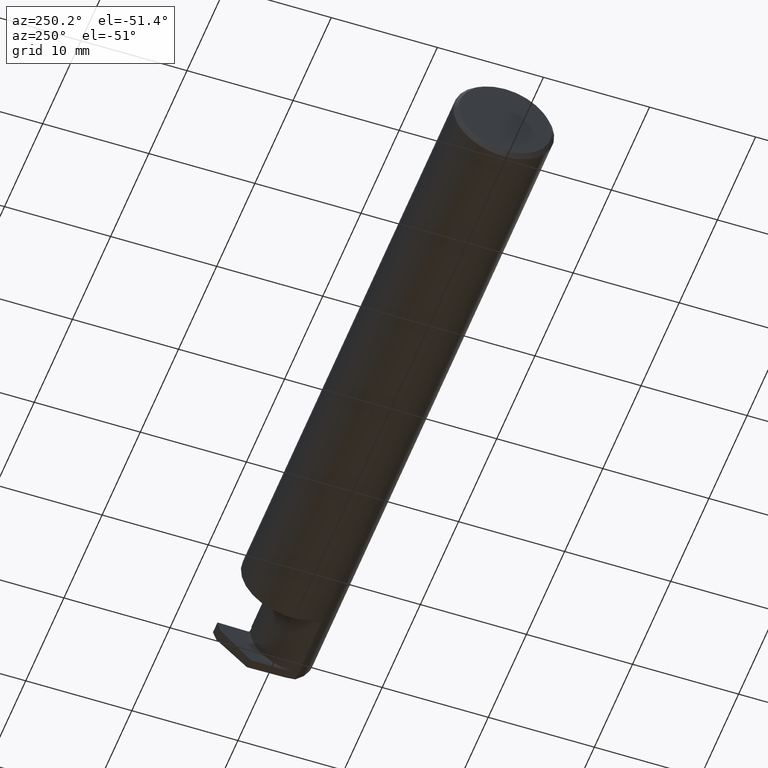
[diagram: clean part render]
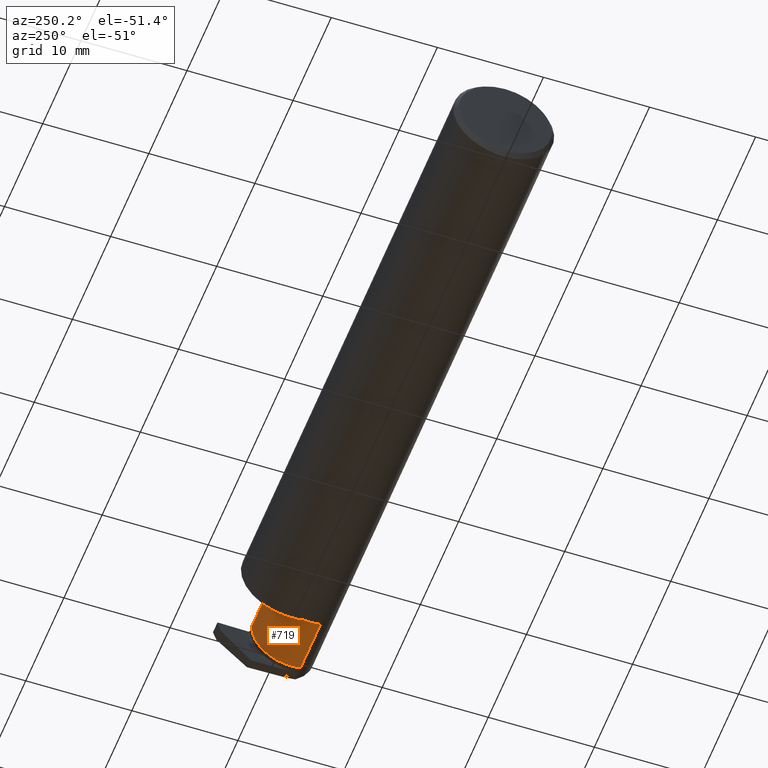
[diagram: same view with one face highlighted and labeled with its STEP entity id]
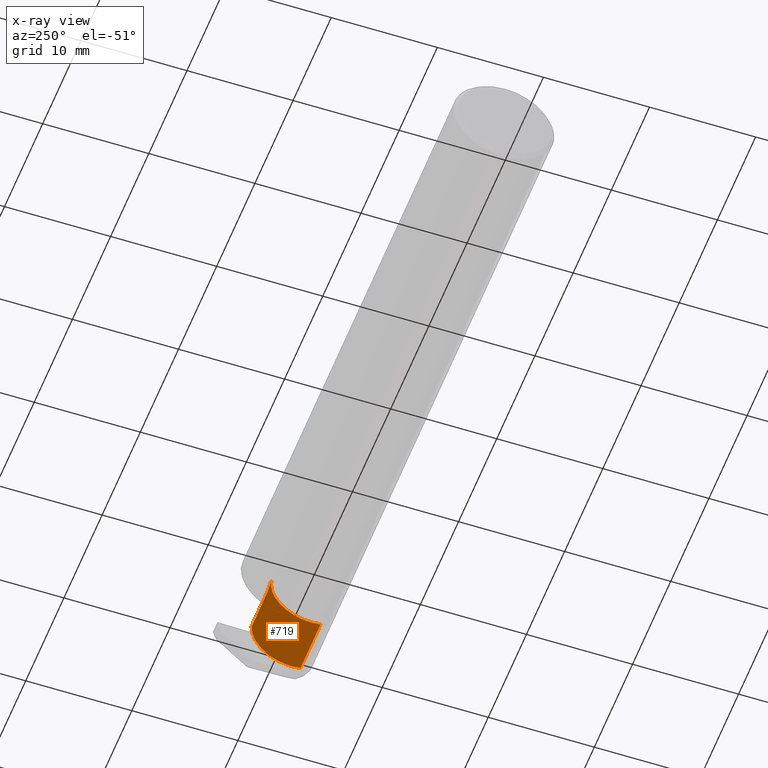
[diagram: x-ray of the same camera — body ghosted, the highlighted face saturated]
A machine part, auxiliary view. The second image highlights one B-rep face of the part: STEP entity #719.
The next image is the same camera in x-ray: the body ghosted, the highlighted face saturated — about 0% of this face is hidden behind the body in this view.
In plain terms, the highlighted cylindrical surface (partial cylindrical patch) has radius 3.81 mm, axis along (-1, -0, -0).
Its self-contained STEP definition (entity closure, byte-faithful):
#7 = EDGE_LOOP ( 'NONE', ( #674, #712, #755, #30, #108 ) ) ;
#14 = CARTESIAN_POINT ( 'NONE',  ( 2.260000000000000231, 0.06664999999999998703, 2.939152317953647352E-17 ) ) ;
#30 = ORIENTED_EDGE ( 'NONE', *, *, #790, .F. ) ;
#36 = CARTESIAN_POINT ( 'NONE',  ( 2.436046101885026793, -0.008364415749995551819, -0.1303958744996015773 ) ) ;
#108 = ORIENTED_EDGE ( 'NONE', *, *, #583, .T. ) ;
#109 = CARTESIAN_POINT ( 'NONE',  ( 2.433128246628466496, 0.05660152496226496244, -0.05513071817246590484 ) ) ;
#117 = CARTESIAN_POINT ( 'NONE',  ( 2.431434868253365078, 0.06665000001251139561, -0.01133157817362112803 ) ) ;
#154 = CARTESIAN_POINT ( 'NONE',  ( 2.436647136148048620, -0.1172600179964007061, -0.1461167706989303094 ) ) ;
#169 = VERTEX_POINT ( 'NONE', #181 ) ;
#181 = CARTESIAN_POINT ( 'NONE',  ( 2.431000000000000494, 0.06664999999999988989, 9.135099441613365556E-18 ) ) ;
#191 = AXIS2_PLACEMENT_3D ( 'NONE', #584, #746, #232 ) ;
#194 = LINE ( 'NONE', #680, #519 ) ;
#195 = CARTESIAN_POINT ( 'NONE',  ( 2.433931572752874750, 0.04684530644161014057, -0.07533264634971054141 ) ) ;
#230 = EDGE_CURVE ( 'NONE', #486, #356, #449, .T. ) ;
#232 = DIRECTION ( 'NONE',  ( 0.000000000000000000, 0.000000000000000000, 1.000000000000000000 ) ) ;
#249 = VERTEX_POINT ( 'NONE', #841 ) ;
#260 = DIRECTION ( 'NONE',  ( -1.000000000000000000, -0.000000000000000000, -0.000000000000000000 ) ) ;
#277 = VERTEX_POINT ( 'NONE', #914 ) ;
#279 = B_SPLINE_CURVE_WITH_KNOTS ( 'NONE', 3,
 ( #334, #117, #466, #767, #109, #195, #394, #681, #343, #413, #36, #472, #822, #836, #618, #756, #628, #760 ),
 .UNSPECIFIED., .F., .F.,
 ( 4, 2, 2, 2, 2, 2, 2, 2, 4 ),
 ( 4.190616790185394939E-12, 0.0008601682978369350413, 0.001720336591483253262, 0.002580504885129571158, 0.003440673178775889487, 0.004300841472422207816, 0.005161009766068525711, 0.006021178059714844474, 0.006881346353361164105 ),
 .UNSPECIFIED. ) ;
#314 = CARTESIAN_POINT ( 'NONE',  ( 2.239881184731320030, 0.06563637295415016004, 0.02011881526868028111 ) ) ;
#320 = DIRECTION ( 'NONE',  ( -1.000000000000000000, -0.000000000000000000, -0.000000000000000000 ) ) ;
#330 = CYLINDRICAL_SURFACE ( 'NONE', #873, 0.1499999999999999667 ) ;
#334 = CARTESIAN_POINT ( 'NONE',  ( 2.431000000000000494, 0.06664999999999988989, 9.135099441613365556E-18 ) ) ;
#340 = CIRCLE ( 'NONE', #191, 0.1499999999999999667 ) ;
#343 = CARTESIAN_POINT ( 'NONE',  ( 2.435238345541164584, 0.01877818129835014116, -0.1104401953337405817 ) ) ;
#356 = VERTEX_POINT ( 'NONE', #555 ) ;
#372 = CARTESIAN_POINT ( 'NONE',  ( 2.229999999999999982, 0.06361938456699060829, 0.03000000000000039788 ) ) ;
#394 = CARTESIAN_POINT ( 'NONE',  ( 2.434258920502241796, 0.04075339656179847309, -0.08498986827032484204 ) ) ;
#413 = CARTESIAN_POINT ( 'NONE',  ( 2.435833621457741849, 0.001115447601429994445, -0.1244700378490885412 ) ) ;
#449 = LINE ( 'NONE', #874, #895 ) ;
#466 = CARTESIAN_POINT ( 'NONE',  ( 2.431837496532518461, 0.06536221481110310316, -0.02262142982777727226 ) ) ;
#472 = CARTESIAN_POINT ( 'NONE',  ( 2.436382050265010424, -0.02860030381767277724, -0.1401013658026688258 ) ) ;
#486 = VERTEX_POINT ( 'NONE', #154 ) ;
#519 = VECTOR ( 'NONE', #536, 39.37007874015748143 ) ;
#536 = DIRECTION ( 'NONE',  ( 1.000000000000000000, 0.000000000000000000, 0.000000000000000000 ) ) ;
#555 = CARTESIAN_POINT ( 'NONE',  ( 2.229999999999999982, -0.1172600179964006922, -0.1461167706989302817 ) ) ;
#558 = FACE_OUTER_BOUND ( 'NONE', #7, .T. ) ;
#583 = EDGE_CURVE ( 'NONE', #249, #277, #752, .T. ) ;
#584 = CARTESIAN_POINT ( 'NONE',  ( 2.229999999999999982, -0.08334999999999996578, 0.000000000000000000 ) ) ;
#618 = CARTESIAN_POINT ( 'NONE',  ( 2.436815280069334122, -0.07244319953102024146, -0.1500290048398160436 ) ) ;
#628 = CARTESIAN_POINT ( 'NONE',  ( 2.436733632730158750, -0.1062136810845215051, -0.1486803469515697307 ) ) ;
#674 = ORIENTED_EDGE ( 'NONE', *, *, #891, .T. ) ;
#680 = CARTESIAN_POINT ( 'NONE',  ( 2.205000000000000071, 0.06665000000000001479, 3.612708057484693206E-17 ) ) ;
#681 = CARTESIAN_POINT ( 'NONE',  ( 2.434904642297234467, 0.02678675196484752580, -0.1024442610077101468 ) ) ;
#690 = EDGE_CURVE ( 'NONE', #169, #486, #279, .T. ) ;
#712 = ORIENTED_EDGE ( 'NONE', *, *, #690, .T. ) ;
#719 = ADVANCED_FACE ( 'NONE', ( #558 ), #330, .T. ) ;
#746 = DIRECTION ( 'NONE',  ( -1.000000000000000000, -0.000000000000000000, -0.000000000000000000 ) ) ;
#752 =( BOUNDED_CURVE ( )  B_SPLINE_CURVE ( 3, ( #372, #314, #868, #14 ),
 .UNSPECIFIED., .F., .T. ) 
 B_SPLINE_CURVE_WITH_KNOTS ( ( 4, 4 ),
 ( 1.369438406004563014, 1.570796326794896558 ),
 .UNSPECIFIED. ) 
 CURVE ( )  GEOMETRIC_REPRESENTATION_ITEM ( )  RATIONAL_B_SPLINE_CURVE ( ( 1.000000000000000000, 0.9966241020034158904, 0.9966241020034158904, 1.000000000000000000 ) ) 
 REPRESENTATION_ITEM ( '' )  );
#755 = ORIENTED_EDGE ( 'NONE', *, *, #230, .T. ) ;
#756 = CARTESIAN_POINT ( 'NONE',  ( 2.436789509417270239, -0.09504051958990092364, -0.1499699714656698435 ) ) ;
#760 = CARTESIAN_POINT ( 'NONE',  ( 2.436647136148048620, -0.1172600179964007061, -0.1461167706989303094 ) ) ;
#767 = CARTESIAN_POINT ( 'NONE',  ( 2.432687523509019289, 0.06031148404182945510, -0.04459181454455411753 ) ) ;
#790 = EDGE_CURVE ( 'NONE', #249, #356, #340, .T. ) ;
#822 = CARTESIAN_POINT ( 'NONE',  ( 2.436526633525360364, -0.03939163419131518767, -0.1438495484792421397 ) ) ;
#827 = DIRECTION ( 'NONE',  ( 0.000000000000000000, 0.000000000000000000, 1.000000000000000000 ) ) ;
#836 = CARTESIAN_POINT ( 'NONE',  ( 2.436759178435224715, -0.06120540502490063456, -0.1487771737721911569 ) ) ;
#841 = CARTESIAN_POINT ( 'NONE',  ( 2.229999999999999982, 0.06361938456699060829, 0.03000000000000039788 ) ) ;
#868 = CARTESIAN_POINT ( 'NONE',  ( 2.249915058064202000, 0.06665000000000001479, 0.01008494193579768938 ) ) ;
#873 = AXIS2_PLACEMENT_3D ( 'NONE', #897, #260, #827 ) ;
#874 = CARTESIAN_POINT ( 'NONE',  ( 2.338999999999999968, -0.1172600179964007477, -0.1461167706989302817 ) ) ;
#891 = EDGE_CURVE ( 'NONE', #277, #169, #194, .T. ) ;
#895 = VECTOR ( 'NONE', #320, 39.37007874015748143 ) ;
#897 = CARTESIAN_POINT ( 'NONE',  ( 2.205000000000000071, -0.08334999999999996578, 0.000000000000000000 ) ) ;
#914 = CARTESIAN_POINT ( 'NONE',  ( 2.260000000000000231, 0.06664999999999998703, 2.939152317953647352E-17 ) ) ;